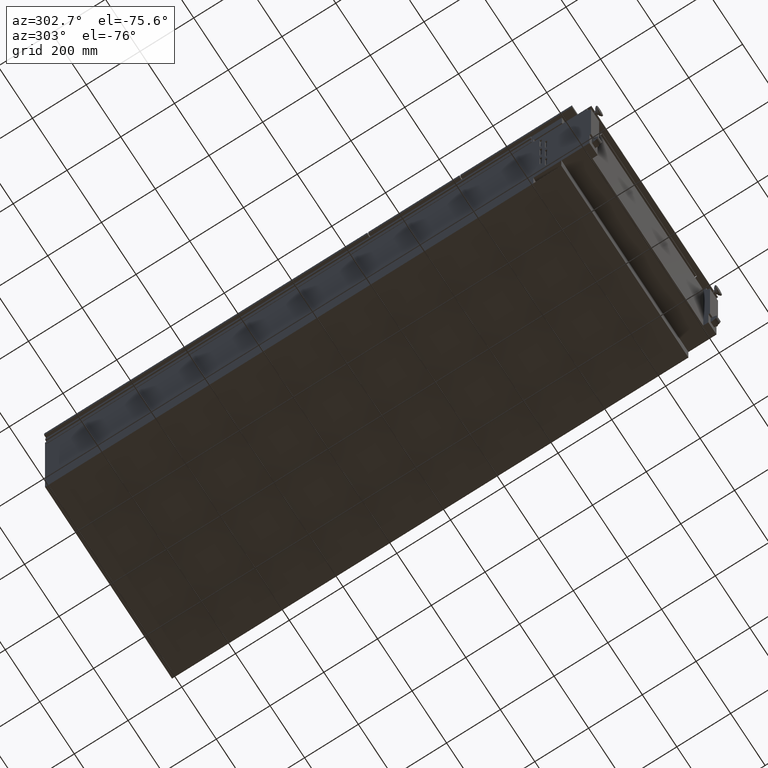
[diagram: clean part render]
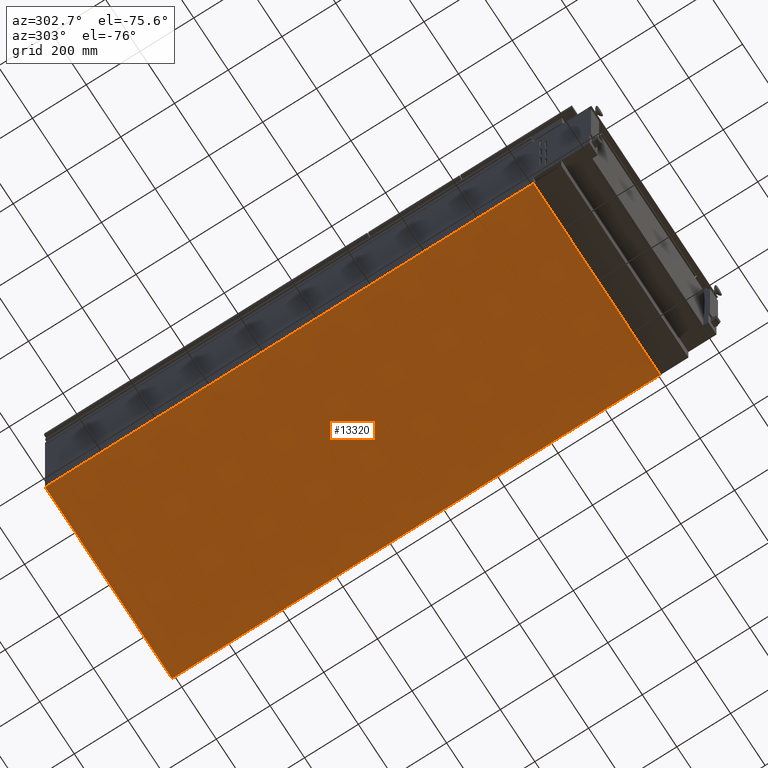
[diagram: same view with one face highlighted and labeled with its STEP entity id]
A machine part, auxiliary view. The second image highlights one B-rep face of the part: STEP entity #13320.
In plain terms, the highlighted planar face has unit normal (0, -0, 1).
Its self-contained STEP definition (entity closure, byte-faithful):
#902 = ORIENTED_EDGE ( 'NONE', *, *, #12689, .T. ) ;
#1271 = VERTEX_POINT ( 'NONE', #13183 ) ;
#1801 = CARTESIAN_POINT ( 'NONE',  ( -368.0000000000000000, 1015.849999999999900, -279.9999999999999400 ) ) ;
#1975 = VECTOR ( 'NONE', #10714, 1000.000000000000000 ) ;
#2839 = CARTESIAN_POINT ( 'NONE',  ( 368.0000000000000000, 1015.849999999999900, -279.9999999999999400 ) ) ;
#2903 = DIRECTION ( 'NONE',  ( -0.0000000000000000000, 1.000000000000000000, 1.092900550893494800E-016 ) ) ;
#3022 = VECTOR ( 'NONE', #4523, 1000.000000000000000 ) ;
#3038 = VERTEX_POINT ( 'NONE', #5420 ) ;
#3070 = VERTEX_POINT ( 'NONE', #11001 ) ;
#3412 = AXIS2_PLACEMENT_3D ( 'NONE', #2839, #11658, #13830 ) ;
#4141 = CARTESIAN_POINT ( 'NONE',  ( 368.0000000000000000, 1015.849999999999900, -279.9999999999999400 ) ) ;
#4196 = LINE ( 'NONE', #8413, #1975 ) ;
#4270 = VECTOR ( 'NONE', #2903, 1000.000000000000000 ) ;
#4523 = DIRECTION ( 'NONE',  ( -1.000000000000000000, -0.0000000000000000000, -0.0000000000000000000 ) ) ;
#4799 = EDGE_CURVE ( 'NONE', #3038, #1271, #12112, .T. ) ;
#5191 = VECTOR ( 'NONE', #6219, 1000.000000000000000 ) ;
#5251 = CARTESIAN_POINT ( 'NONE',  ( -368.0000000000000000, 1015.849999999999900, -279.9999999999999400 ) ) ;
#5308 = LINE ( 'NONE', #1801, #4270 ) ;
#5420 = CARTESIAN_POINT ( 'NONE',  ( 368.0000000000000000, -801.1499999999997500, -280.0000000000001100 ) ) ;
#5674 = CARTESIAN_POINT ( 'NONE',  ( 368.0000000000000000, 1015.849999999999900, -279.9999999999999400 ) ) ;
#6219 = DIRECTION ( 'NONE',  ( -0.0000000000000000000, 1.000000000000000000, 1.092900550893494800E-016 ) ) ;
#6388 = VERTEX_POINT ( 'NONE', #5251 ) ;
#7675 = EDGE_CURVE ( 'NONE', #3070, #3038, #4196, .T. ) ;
#8413 = CARTESIAN_POINT ( 'NONE',  ( -368.0000000000000000, -801.1499999999997500, -280.0000000000001100 ) ) ;
#8823 = ORIENTED_EDGE ( 'NONE', *, *, #7675, .F. ) ;
#9405 = ORIENTED_EDGE ( 'NONE', *, *, #4799, .F. ) ;
#10714 = DIRECTION ( 'NONE',  ( 1.000000000000000000, -0.0000000000000000000, -0.0000000000000000000 ) ) ;
#10989 = LINE ( 'NONE', #5674, #3022 ) ;
#11001 = CARTESIAN_POINT ( 'NONE',  ( -368.0000000000000000, -801.1499999999997500, -280.0000000000001100 ) ) ;
#11658 = DIRECTION ( 'NONE',  ( 0.0000000000000000000, -1.092900550893494800E-016, 1.000000000000000000 ) ) ;
#12112 = LINE ( 'NONE', #4141, #5191 ) ;
#12183 = FACE_OUTER_BOUND ( 'NONE', #13584, .T. ) ;
#12667 = ORIENTED_EDGE ( 'NONE', *, *, #13556, .F. ) ;
#12689 = EDGE_CURVE ( 'NONE', #3070, #6388, #5308, .T. ) ;
#13183 = CARTESIAN_POINT ( 'NONE',  ( 368.0000000000000000, 1015.849999999999900, -279.9999999999999400 ) ) ;
#13320 = ADVANCED_FACE ( 'NONE', ( #12183 ), #13877, .F. ) ;
#13556 = EDGE_CURVE ( 'NONE', #1271, #6388, #10989, .T. ) ;
#13584 = EDGE_LOOP ( 'NONE', ( #9405, #8823, #902, #12667 ) ) ;
#13830 = DIRECTION ( 'NONE',  ( 0.0000000000000000000, -1.000000000000000000, -1.092900550893494800E-016 ) ) ;
#13877 = PLANE ( 'NONE',  #3412 ) ;